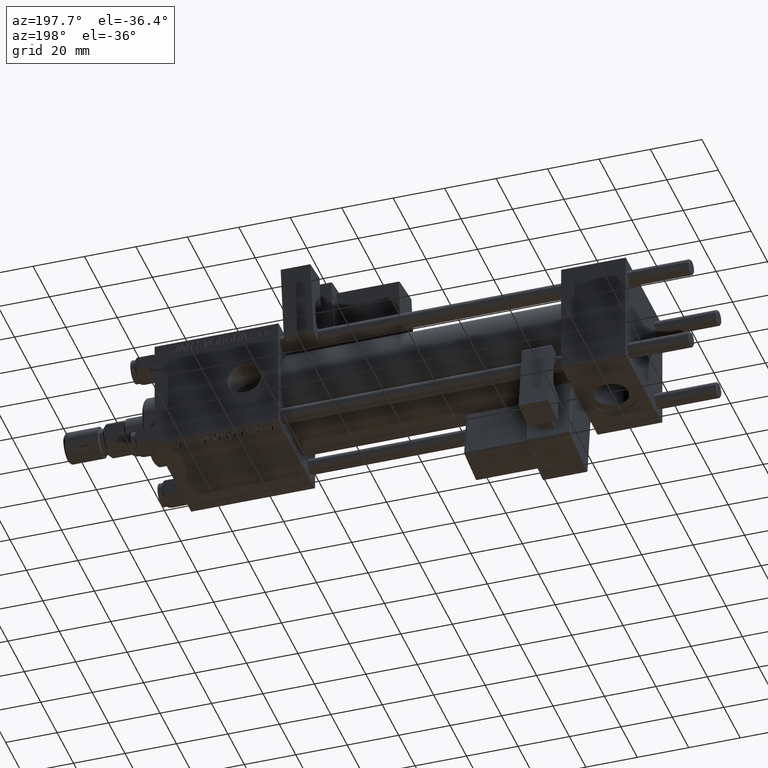
[diagram: clean part render]
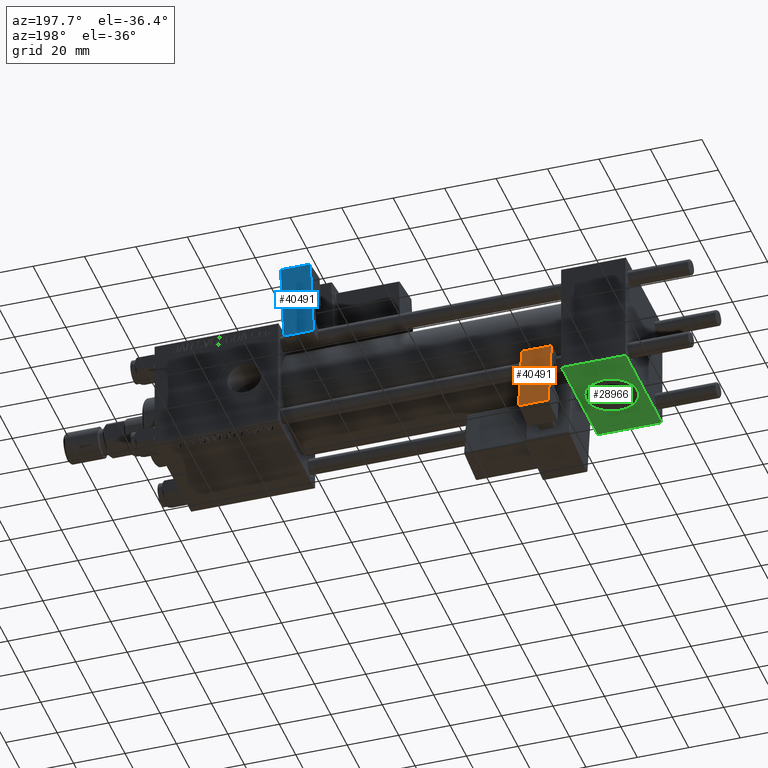
[diagram: same view with three faces highlighted in distinct colors, each labeled with its STEP entity id]
A machine part, auxiliary view with three faces highlighted in distinct colors.
Their STEP definitions:

[orange] entity #40491 — the highlighted planar face has unit normal (0, -0.9902, -0.1399).
#38 = CARTESIAN_POINT ( 'NONE',  ( -5.750000000000000000, 5.750000000000000000, 12.00000000000000000 ) ) ;
#1967 = EDGE_CURVE ( 'NONE', #7252, #48111, #9938, .T. ) ;
#3893 = CARTESIAN_POINT ( 'NONE',  ( -5.750000000000000000, 5.750000000000000000, 28.00000000000000000 ) ) ;
#4763 = VECTOR ( 'NONE', #21762, 1000.000000000000000 ) ;
#4819 = ORIENTED_EDGE ( 'NONE', *, *, #24387, .F. ) ;
#5001 = CARTESIAN_POINT ( 'NONE',  ( 5.750000000000000000, 5.750000000000001776, 12.00000000000000000 ) ) ;
#6690 = EDGE_LOOP ( 'NONE', ( #4819, #41583, #14038, #35468 ) ) ;
#7252 = VERTEX_POINT ( 'NONE', #19211 ) ;
#9938 = LINE ( 'NONE', #5001, #4763 ) ;
#12943 = DIRECTION ( 'NONE',  ( 1.000000000000000000, 1.508455196501571183E-16, -0.000000000000000000 ) ) ;
#13639 = VERTEX_POINT ( 'NONE', #3893 ) ;
#14038 = ORIENTED_EDGE ( 'NONE', *, *, #1967, .T. ) ;
#16737 = VERTEX_POINT ( 'NONE', #39332 ) ;
#16777 = DIRECTION ( 'NONE',  ( 1.508455196501571183E-16, -1.000000000000000000, 0.000000000000000000 ) ) ;
#18230 = VECTOR ( 'NONE', #27326, 1000.000000000000000 ) ;
#19211 = CARTESIAN_POINT ( 'NONE',  ( 5.750000000000000000, 5.750000000000001776, 28.00000000000000000 ) ) ;
#21762 = DIRECTION ( 'NONE',  ( -0.000000000000000000, -0.000000000000000000, -1.000000000000000000 ) ) ;
#24387 = EDGE_CURVE ( 'NONE', #13639, #16737, #39595, .T. ) ;
#25163 = CARTESIAN_POINT ( 'NONE',  ( 5.750000000000000000, 5.750000000000001776, 0.000000000000000000 ) ) ;
#25561 = LINE ( 'NONE', #46448, #41102 ) ;
#26063 = EDGE_CURVE ( 'NONE', #48111, #16737, #30627, .T. ) ;
#26529 = EDGE_CURVE ( 'NONE', #13639, #7252, #25561, .T. ) ;
#27064 = CARTESIAN_POINT ( 'NONE',  ( -5.750000000000000000, 5.750000000000000000, 0.000000000000000000 ) ) ;
#27326 = DIRECTION ( 'NONE',  ( -1.000000000000000000, -1.508455196501571429E-16, -0.000000000000000000 ) ) ;
#28748 = VECTOR ( 'NONE', #44273, 1000.000000000000000 ) ;
#30627 = LINE ( 'NONE', #27064, #18230 ) ;
#34064 = FACE_OUTER_BOUND ( 'NONE', #6690, .T. ) ;
#35468 = ORIENTED_EDGE ( 'NONE', *, *, #26063, .T. ) ;
#35480 = AXIS2_PLACEMENT_3D ( 'NONE', #38, #16777, #37390 ) ;
#37390 = DIRECTION ( 'NONE',  ( 1.000000000000000000, 1.508455196501571183E-16, 0.000000000000000000 ) ) ;
#39332 = CARTESIAN_POINT ( 'NONE',  ( -5.750000000000000000, 5.750000000000000000, 0.000000000000000000 ) ) ;
#39595 = LINE ( 'NONE', #52257, #28748 ) ;
#40491 = ADVANCED_FACE ( 'NONE', ( #34064 ), #50834, .F. ) ;
#41102 = VECTOR ( 'NONE', #12943, 1000.000000000000000 ) ;
#41583 = ORIENTED_EDGE ( 'NONE', *, *, #26529, .T. ) ;
#44273 = DIRECTION ( 'NONE',  ( -0.000000000000000000, -0.000000000000000000, -1.000000000000000000 ) ) ;
#46448 = CARTESIAN_POINT ( 'NONE',  ( -5.750000000000000000, 5.750000000000000000, 28.00000000000000000 ) ) ;
#48111 = VERTEX_POINT ( 'NONE', #25163 ) ;
#50834 = PLANE ( 'NONE',  #35480 ) ;
#52257 = CARTESIAN_POINT ( 'NONE',  ( -5.750000000000000000, 5.750000000000000000, 12.00000000000000000 ) ) ;

[blue] entity #40491 — the highlighted planar face has unit normal (-0, -0.9908, 0.1355).
#38 = CARTESIAN_POINT ( 'NONE',  ( -5.750000000000000000, 5.750000000000000000, 12.00000000000000000 ) ) ;
#1967 = EDGE_CURVE ( 'NONE', #7252, #48111, #9938, .T. ) ;
#3893 = CARTESIAN_POINT ( 'NONE',  ( -5.750000000000000000, 5.750000000000000000, 28.00000000000000000 ) ) ;
#4763 = VECTOR ( 'NONE', #21762, 1000.000000000000000 ) ;
#4819 = ORIENTED_EDGE ( 'NONE', *, *, #24387, .F. ) ;
#5001 = CARTESIAN_POINT ( 'NONE',  ( 5.750000000000000000, 5.750000000000001776, 12.00000000000000000 ) ) ;
#6690 = EDGE_LOOP ( 'NONE', ( #4819, #41583, #14038, #35468 ) ) ;
#7252 = VERTEX_POINT ( 'NONE', #19211 ) ;
#9938 = LINE ( 'NONE', #5001, #4763 ) ;
#12943 = DIRECTION ( 'NONE',  ( 1.000000000000000000, 1.508455196501571183E-16, -0.000000000000000000 ) ) ;
#13639 = VERTEX_POINT ( 'NONE', #3893 ) ;
#14038 = ORIENTED_EDGE ( 'NONE', *, *, #1967, .T. ) ;
#16737 = VERTEX_POINT ( 'NONE', #39332 ) ;
#16777 = DIRECTION ( 'NONE',  ( 1.508455196501571183E-16, -1.000000000000000000, 0.000000000000000000 ) ) ;
#18230 = VECTOR ( 'NONE', #27326, 1000.000000000000000 ) ;
#19211 = CARTESIAN_POINT ( 'NONE',  ( 5.750000000000000000, 5.750000000000001776, 28.00000000000000000 ) ) ;
#21762 = DIRECTION ( 'NONE',  ( -0.000000000000000000, -0.000000000000000000, -1.000000000000000000 ) ) ;
#24387 = EDGE_CURVE ( 'NONE', #13639, #16737, #39595, .T. ) ;
#25163 = CARTESIAN_POINT ( 'NONE',  ( 5.750000000000000000, 5.750000000000001776, 0.000000000000000000 ) ) ;
#25561 = LINE ( 'NONE', #46448, #41102 ) ;
#26063 = EDGE_CURVE ( 'NONE', #48111, #16737, #30627, .T. ) ;
#26529 = EDGE_CURVE ( 'NONE', #13639, #7252, #25561, .T. ) ;
#27064 = CARTESIAN_POINT ( 'NONE',  ( -5.750000000000000000, 5.750000000000000000, 0.000000000000000000 ) ) ;
#27326 = DIRECTION ( 'NONE',  ( -1.000000000000000000, -1.508455196501571429E-16, -0.000000000000000000 ) ) ;
#28748 = VECTOR ( 'NONE', #44273, 1000.000000000000000 ) ;
#30627 = LINE ( 'NONE', #27064, #18230 ) ;
#34064 = FACE_OUTER_BOUND ( 'NONE', #6690, .T. ) ;
#35468 = ORIENTED_EDGE ( 'NONE', *, *, #26063, .T. ) ;
#35480 = AXIS2_PLACEMENT_3D ( 'NONE', #38, #16777, #37390 ) ;
#37390 = DIRECTION ( 'NONE',  ( 1.000000000000000000, 1.508455196501571183E-16, 0.000000000000000000 ) ) ;
#39332 = CARTESIAN_POINT ( 'NONE',  ( -5.750000000000000000, 5.750000000000000000, 0.000000000000000000 ) ) ;
#39595 = LINE ( 'NONE', #52257, #28748 ) ;
#40491 = ADVANCED_FACE ( 'NONE', ( #34064 ), #50834, .F. ) ;
#41102 = VECTOR ( 'NONE', #12943, 1000.000000000000000 ) ;
#41583 = ORIENTED_EDGE ( 'NONE', *, *, #26529, .T. ) ;
#44273 = DIRECTION ( 'NONE',  ( -0.000000000000000000, -0.000000000000000000, -1.000000000000000000 ) ) ;
#46448 = CARTESIAN_POINT ( 'NONE',  ( -5.750000000000000000, 5.750000000000000000, 28.00000000000000000 ) ) ;
#48111 = VERTEX_POINT ( 'NONE', #25163 ) ;
#50834 = PLANE ( 'NONE',  #35480 ) ;
#52257 = CARTESIAN_POINT ( 'NONE',  ( -5.750000000000000000, 5.750000000000000000, 12.00000000000000000 ) ) ;

[green] entity #28966 — the highlighted planar face has unit normal (0, 0, -1).
#1618 = CARTESIAN_POINT ( 'NONE',  ( 0.000000000000000000, -21.99999999999998579, -22.50000000000000711 ) ) ;
#2608 = DIRECTION ( 'NONE',  ( 0.000000000000000000, -1.734723475976806848E-16, -1.000000000000000000 ) ) ;
#2620 = EDGE_CURVE ( 'NONE', #9141, #50258, #9166, .T. ) ;
#3702 = CARTESIAN_POINT ( 'NONE',  ( 12.50000000000000178, -9.999999999999996447, -22.50000000000000000 ) ) ;
#4790 = DIRECTION ( 'NONE',  ( 1.000000000000000000, 0.000000000000000000, 0.000000000000000000 ) ) ;
#5123 = VERTEX_POINT ( 'NONE', #18655 ) ;
#7343 = VECTOR ( 'NONE', #4790, 1000.000000000000000 ) ;
#8156 = DIRECTION ( 'NONE',  ( 0.000000000000000000, -1.000000000000000000, -2.312964634635742957E-16 ) ) ;
#9141 = VERTEX_POINT ( 'NONE', #31610 ) ;
#9166 = CIRCLE ( 'NONE', #46892, 10.00000000000000178 ) ;
#10046 = CARTESIAN_POINT ( 'NONE',  ( 0.000000000000000000, 22.50000000000000000, -22.49999999999999645 ) ) ;
#13315 = CARTESIAN_POINT ( 'NONE',  ( 25.00000000000000000, 21.99999999999999289, -22.49999999999999645 ) ) ;
#13658 = PLANE ( 'NONE',  #49965 ) ;
#13927 = DIRECTION ( 'NONE',  ( 0.000000000000000000, 1.000000000000000000, 2.312964634635742957E-16 ) ) ;
#16080 = VERTEX_POINT ( 'NONE', #32387 ) ;
#16595 = VECTOR ( 'NONE', #51811, 1000.000000000000000 ) ;
#17507 = FACE_BOUND ( 'NONE', #33848, .T. ) ;
#18368 = LINE ( 'NONE', #1618, #52036 ) ;
#18655 = CARTESIAN_POINT ( 'NONE',  ( 25.00000000000000000, -21.99999999999997158, -22.50000000000000711 ) ) ;
#18664 = AXIS2_PLACEMENT_3D ( 'NONE', #43187, #22033, #34668 ) ;
#19082 = ORIENTED_EDGE ( 'NONE', *, *, #34911, .T. ) ;
#21623 = CARTESIAN_POINT ( 'NONE',  ( 25.00000000000000000, 22.50000000000000000, -22.49999999999999645 ) ) ;
#22033 = DIRECTION ( 'NONE',  ( 0.000000000000000000, -1.734723475976806848E-16, -1.000000000000000000 ) ) ;
#26321 = ORIENTED_EDGE ( 'NONE', *, *, #2620, .F. ) ;
#26494 = VERTEX_POINT ( 'NONE', #32482 ) ;
#28022 = EDGE_CURVE ( 'NONE', #16080, #35171, #47135, .T. ) ;
#28402 = ORIENTED_EDGE ( 'NONE', *, *, #28022, .F. ) ;
#28966 = ADVANCED_FACE ( 'NONE', ( #17507, #46349 ), #13658, .T. ) ;
#31610 = CARTESIAN_POINT ( 'NONE',  ( 12.50000000000000000, 10.00000000000000711, -22.50000000000000000 ) ) ;
#32387 = CARTESIAN_POINT ( 'NONE',  ( 0.000000000000000000, 21.99999999999999289, -22.49999999999999645 ) ) ;
#32482 = CARTESIAN_POINT ( 'NONE',  ( 25.00000000000000000, 21.99999999999999289, -22.49999999999999645 ) ) ;
#32801 = CARTESIAN_POINT ( 'NONE',  ( 12.50000000000000000, 5.035636875936204037E-15, -22.50000000000000000 ) ) ;
#33848 = EDGE_LOOP ( 'NONE', ( #26321, #39327 ) ) ;
#34175 = EDGE_CURVE ( 'NONE', #5123, #35171, #18368, .T. ) ;
#34356 = EDGE_CURVE ( 'NONE', #26494, #5123, #50457, .T. ) ;
#34668 = DIRECTION ( 'NONE',  ( 0.000000000000000000, 1.000000000000000000, 0.000000000000000000 ) ) ;
#34911 = EDGE_CURVE ( 'NONE', #16080, #26494, #52043, .T. ) ;
#35171 = VERTEX_POINT ( 'NONE', #37177 ) ;
#36269 = EDGE_CURVE ( 'NONE', #50258, #9141, #44070, .T. ) ;
#36954 = EDGE_LOOP ( 'NONE', ( #28402, #19082, #45484, #47857 ) ) ;
#37177 = CARTESIAN_POINT ( 'NONE',  ( 0.000000000000000000, -21.99999999999997158, -22.50000000000000711 ) ) ;
#37283 = CARTESIAN_POINT ( 'NONE',  ( 25.00000000000000000, 22.50000000000000000, -22.49999999999999645 ) ) ;
#37985 = VECTOR ( 'NONE', #8156, 1000.000000000000000 ) ;
#39327 = ORIENTED_EDGE ( 'NONE', *, *, #36269, .F. ) ;
#41315 = DIRECTION ( 'NONE',  ( 0.000000000000000000, 1.000000000000000000, 0.000000000000000000 ) ) ;
#42775 = DIRECTION ( 'NONE',  ( 0.000000000000000000, 2.312964634635742957E-16, -1.000000000000000000 ) ) ;
#42816 = DIRECTION ( 'NONE',  ( -1.000000000000000000, 0.000000000000000000, 0.000000000000000000 ) ) ;
#43187 = CARTESIAN_POINT ( 'NONE',  ( 12.50000000000000000, 5.035636875936204037E-15, -22.50000000000000000 ) ) ;
#44070 = CIRCLE ( 'NONE', #18664, 10.00000000000000178 ) ;
#45484 = ORIENTED_EDGE ( 'NONE', *, *, #34356, .T. ) ;
#46349 = FACE_OUTER_BOUND ( 'NONE', #36954, .T. ) ;
#46892 = AXIS2_PLACEMENT_3D ( 'NONE', #32801, #2608, #41315 ) ;
#47135 = LINE ( 'NONE', #10046, #16595 ) ;
#47857 = ORIENTED_EDGE ( 'NONE', *, *, #34175, .T. ) ;
#49965 = AXIS2_PLACEMENT_3D ( 'NONE', #21623, #42775, #13927 ) ;
#50258 = VERTEX_POINT ( 'NONE', #3702 ) ;
#50457 = LINE ( 'NONE', #37283, #37985 ) ;
#51811 = DIRECTION ( 'NONE',  ( 0.000000000000000000, -1.000000000000000000, -2.312964634635742957E-16 ) ) ;
#52036 = VECTOR ( 'NONE', #42816, 1000.000000000000000 ) ;
#52043 = LINE ( 'NONE', #13315, #7343 ) ;